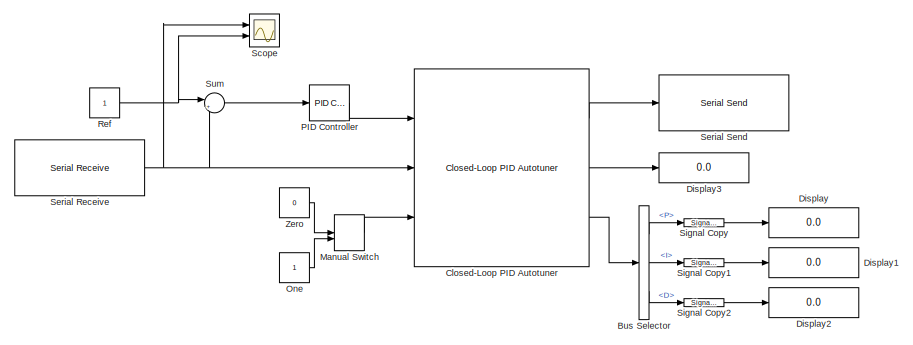
[diagram: root canvas - part 1/2, top right region]
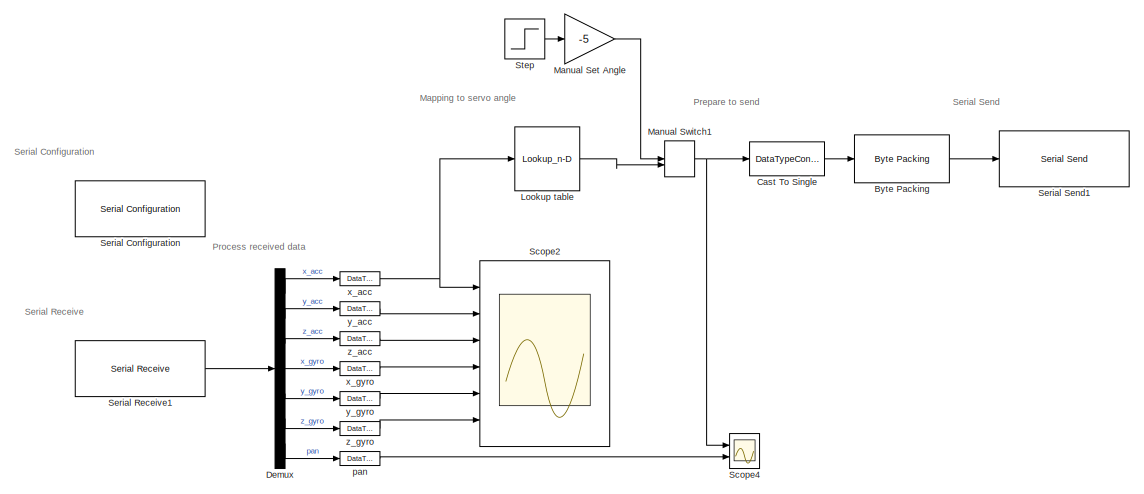
[diagram: root canvas - part 2/2, left side, full height]
MODEL slx_60a66938501d
KIND model
CONFIG AbsTol = auto
CONFIG EnableMultiTasking = off
CONFIG FixedStep = 1e-2
CONFIG MaxStep = auto
CONFIG MinStep = auto
CONFIG RelTol = 1e-3
CONFIG SampleTimeConstraint = Unconstrained
CONFIG SolverName = VariableStepAuto
CONFIG StartTime = 0.0
CONFIG StopTime = 50
BLOCK [BusSelector] Bus Selector
  Commented = on
  OutputSignals = P,I,D
  Ports = [1, 3]
BLOCK [Reference] Byte Packing   REF=slrealtimeutilitieslib/Byte Packing
  Ports = [1, 1]
  SourceBlock = slrealtimeutilitieslib/Byte Packing
  SourceProductBaseCode = XP
  SourceType = slrealtimebytepacking
BLOCK [DataTypeConversion] Cast To Single 
  OutDataTypeStr = single
  RndMeth = Floor
  SaturateOnIntegerOverflow = off
BLOCK [Reference] Closed-Loop PID Autotuner  REF=slctrlblks/Closed-Loop PID Autotuner
  Commented = on
  Ports = [3, 3]
  SourceBlock = slctrlblks/Closed-Loop PID Autotuner
  SourceProductBaseCode = SD
  SourceType = ClosedLoopOnlinePIDTuner
BLOCK [Demux] Demux
  Outputs = 7
  Ports = [1, 7]
BLOCK [Display] Display
  Commented = on
  Decimation = 1
  Ports = [1]
BLOCK [Display] Display1
  Commented = on
  Decimation = 1
  Ports = [1]
BLOCK [Display] Display2
  Commented = on
  Decimation = 1
  Ports = [1]
BLOCK [Display] Display3
  Commented = on
  Decimation = 1
  Ports = [1]
BLOCK [Lookup_n-D] Lookup table
  BreakpointsForDimension1 = [-10000 9000]
  InputPortMap = u0
  InternalRulePriority = Speed
  NumberOfTableDimensions = 1
  Ports = [1, 1]
  RndMeth = Simplest
  Table = [-45 45]
BLOCK [Gain] Manual Set Angle
  Gain = -5
BLOCK [ManualSwitch] Manual Switch
  Commented = on
BLOCK [ManualSwitch] Manual Switch1
  CurrentSetting = 0
BLOCK [Constant] One
  Commented = on
  OutDataTypeStr = Inherit: Inherit via back propagation
BLOCK [Reference] PID Controller  REF=slpidlib/PID Controller
  Commented = on
  Ports = [1, 1]
  SourceBlock = slpidlib/PID Controller
  SourceProductBaseCode = SL
  SourceType = PID 1dof
BLOCK [Constant] Ref
  Commented = on
BLOCK [Scope] Scope
  Commented = on
  Floating = off
  NumInputPorts = 2
  Ports = [2]
  ScopeSpecificationString = Simulink.scopes.TimeScopeBlockCfg('CurrentConfiguration', extmgr.ConfigurationSet(extmgr.Configuration('Core','General UI',true),extmgr.Configuration('Core','Source UI',true),extmgr.Configuration('Sources','WiredSimulink',true),extmgr.Configuration('Visuals','Time Domain',true),extmgr.Configuration('Tools','Plot Navigation',true),extmgr.Configuration('Tools','Measurements',true,'Version','2021b'))...<+45ch>
BLOCK [Scope] Scope2
  Commented = on
  Floating = off
  NumInputPorts = 6
  Ports = [6]
  ScopeSpecificationString = Simulink.scopes.TimeScopeBlockCfg('CurrentConfiguration', extmgr.ConfigurationSet(extmgr.Configuration('Core','General UI',true),extmgr.Configuration('Core','Source UI',true),extmgr.Configuration('Sources','WiredSimulink',true,'DataLoggingVariableName','ScopeData1'),extmgr.Configuration('Visuals','Time Domain',true,'SerializedDisplays',{struct('MinYLimReal','-7554.00000','MaxYLimReal','14386.00000...<+2232ch>
BLOCK [Scope] Scope4
  Floating = off
  NumInputPorts = 2
  Ports = [2]
  ScopeSpecificationString = Simulink.scopes.TimeScopeBlockCfg('CurrentConfiguration', extmgr.ConfigurationSet(extmgr.Configuration('Core','General UI',true),extmgr.Configuration('Core','Source UI',true),extmgr.Configuration('Sources','WiredSimulink',true,'DataLoggingVariableName','ScopeData3'),extmgr.Configuration('Visuals','Time Domain',true,'SerializedDisplays',{struct('MinYLimReal','-21.77625','MaxYLimReal','50.08625','YL...<+1456ch>
BLOCK [Reference] Serial Configuration  REF=instrumentseriallib/Serial Configuration
  Ports = []
  Priority = -200000
  SourceBlock = instrumentseriallib/Serial Configuration
  SourceProductBaseCode = IC
  SourceType = system.SerialConfiguration
BLOCK [Reference] Serial Receive  REF=instrumentseriallib/Serial Receive
  Commented = on
  Ports = [0, 1]
  Priority = 1
  SourceBlock = instrumentseriallib/Serial Receive
  SourceProductBaseCode = IC
  SourceType = system.SerialReceive
BLOCK [Reference] Serial Receive1  REF=instrumentseriallib/Serial Receive
  Ports = [0, 1]
  SourceBlock = instrumentseriallib/Serial Receive
  SourceProductBaseCode = IC
  SourceType = system.SerialReceive
BLOCK [Reference] Serial Send  REF=instrumentseriallib/Serial Send
  Commented = on
  Ports = [1]
  Priority = 1
  SourceBlock = instrumentseriallib/Serial Send
  SourceProductBaseCode = IC
  SourceType = system.SerialSend
BLOCK [Reference] Serial Send1  REF=instrumentseriallib/Serial Send
  Ports = [1]
  SourceBlock = instrumentseriallib/Serial Send
  SourceProductBaseCode = IC
  SourceType = system.SerialSend
BLOCK [SignalConversion] Signal Copy
  Commented = on
  OverrideOpt = off
BLOCK [SignalConversion] Signal Copy1
  Commented = on
  OverrideOpt = off
BLOCK [SignalConversion] Signal Copy2
  Commented = on
  OverrideOpt = off
BLOCK [Step] Step
  Before = 1
  SampleTime = 0
BLOCK [Sum] Sum
  Commented = on
  Inputs = |+-
  Ports = [2, 1]
BLOCK [Constant] Zero
  Commented = on
  OutDataTypeStr = Inherit: Inherit via back propagation
  Value = 0
BLOCK [DataTypeConversion] pan
  OutDataTypeStr = double
  RndMeth = Floor
  SaturateOnIntegerOverflow = off
BLOCK [DataTypeConversion] x_acc
  OutDataTypeStr = double
  RndMeth = Floor
  SaturateOnIntegerOverflow = off
BLOCK [DataTypeConversion] x_gyro
  OutDataTypeStr = double
  RndMeth = Floor
  SaturateOnIntegerOverflow = off
BLOCK [DataTypeConversion] y_acc
  OutDataTypeStr = double
  RndMeth = Floor
  SaturateOnIntegerOverflow = off
BLOCK [DataTypeConversion] y_gyro
  OutDataTypeStr = double
  RndMeth = Floor
  SaturateOnIntegerOverflow = off
BLOCK [DataTypeConversion] z_acc
  OutDataTypeStr = double
  RndMeth = Floor
  SaturateOnIntegerOverflow = off
BLOCK [DataTypeConversion] z_gyro
  OutDataTypeStr = double
  RndMeth = Floor
  SaturateOnIntegerOverflow = off
ANNOTATION (root): Mapping to servo angle
ANNOTATION (root): Prepare to send
ANNOTATION (root): Process received data
ANNOTATION (root): Serial Configuration
ANNOTATION (root): Serial Receive
ANNOTATION (root): Serial Send
LINE Bus Selector:1 -> Signal Copy:1
LINE Bus Selector:2 -> Signal Copy1:1
LINE Bus Selector:3 -> Signal Copy2:1
LINE Byte Packing :1 -> Serial Send1:1
LINE Cast To Single :1 -> Byte Packing :1
LINE Closed-Loop PID Autotuner:1 -> Serial Send:1
LINE Closed-Loop PID Autotuner:2 -> Display3:1
LINE Closed-Loop PID Autotuner:3 -> Bus Selector:1
LINE Demux:1 -> x_acc:1
LINE Demux:2 -> y_acc:1
LINE Demux:3 -> z_acc:1
LINE Demux:4 -> x_gyro:1
LINE Demux:5 -> y_gyro:1
LINE Demux:6 -> z_gyro:1
LINE Demux:7 -> pan:1
LINE Lookup table:1 -> Manual Switch1:2
LINE Manual Set Angle:1 -> Manual Switch1:1
NET Manual Switch1:1 -> Cast To Single :1, Scope4:1
LINE Manual Switch:1 -> Closed-Loop PID Autotuner:3
LINE One:1 -> Manual Switch:2
LINE PID Controller:1 -> Closed-Loop PID Autotuner:1
NET Ref:1 -> Scope:2, Sum:1
LINE Serial Receive1:1 -> Demux:1
NET Serial Receive:1 -> Closed-Loop PID Autotuner:2, Scope:1, Sum:2
LINE Signal Copy1:1 -> Display1:1
LINE Signal Copy2:1 -> Display2:1
LINE Signal Copy:1 -> Display:1
LINE Step:1 -> Manual Set Angle:1
LINE Sum:1 -> PID Controller:1
LINE Zero:1 -> Manual Switch:1
LINE pan:1 -> Scope4:2
NET x_acc:1 -> Lookup table:1, Scope2:1
LINE x_gyro:1 -> Scope2:4
LINE y_acc:1 -> Scope2:2
LINE y_gyro:1 -> Scope2:5
LINE z_acc:1 -> Scope2:3
LINE z_gyro:1 -> Scope2:6
note: NET lines group one-source signal fan-out (src -> all destinations, sorted); 1:1 wires keep LINE
